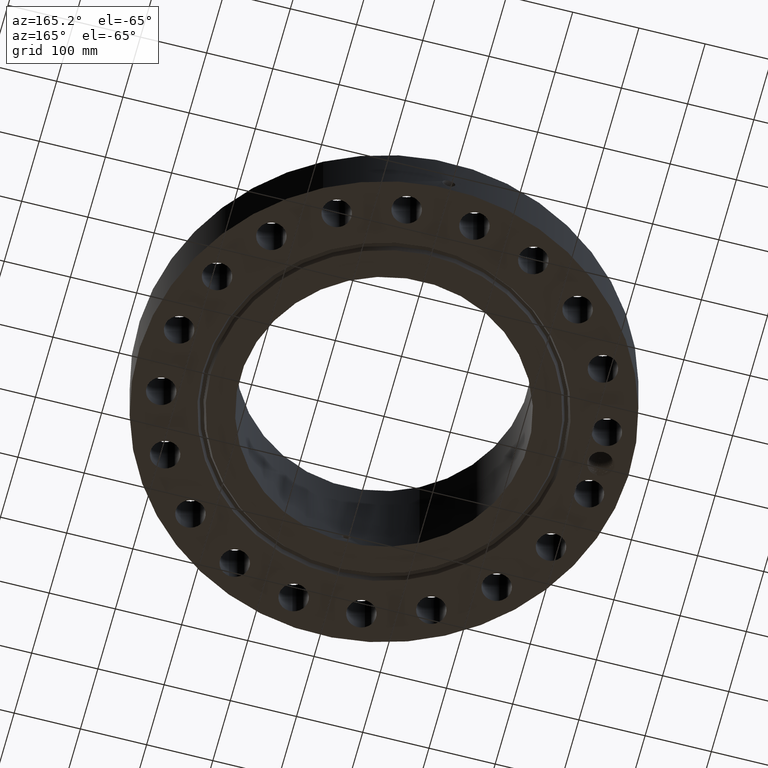
[diagram: clean part render]
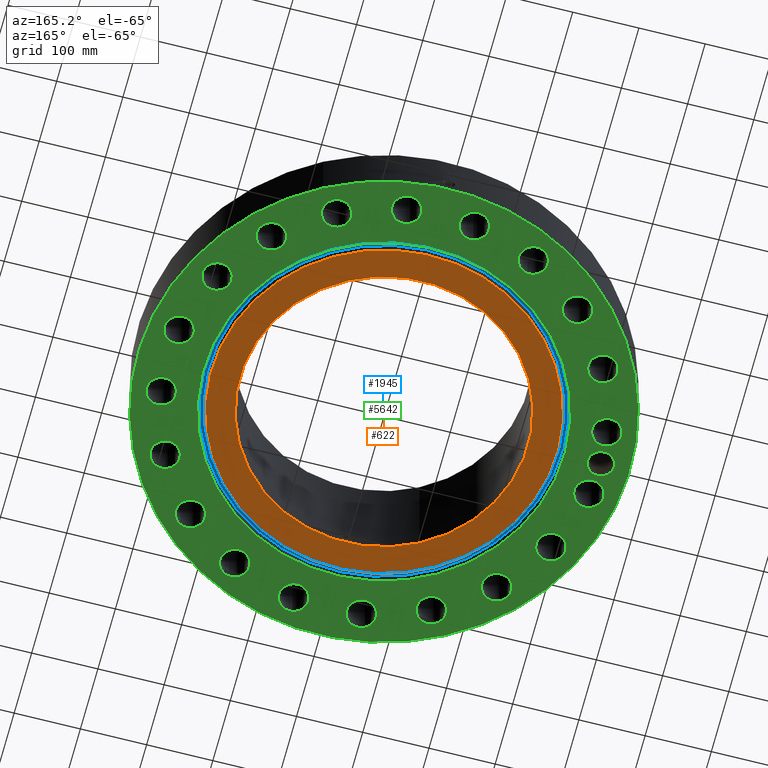
[diagram: same view with three faces highlighted in distinct colors, each labeled with its STEP entity id]
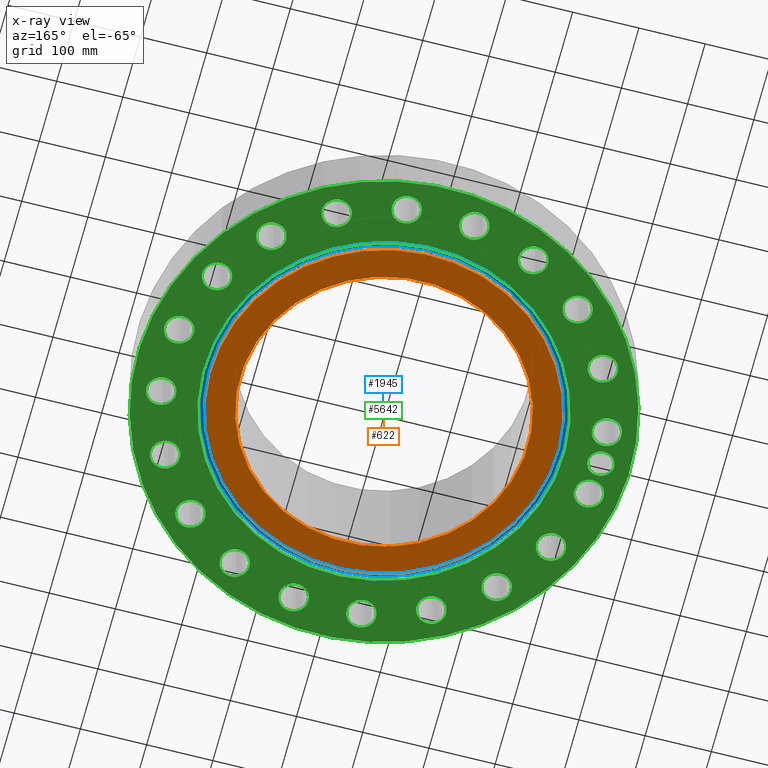
[diagram: x-ray of the same camera — body ghosted, the three highlighted faces saturated]
A machine part, auxiliary view with three faces highlighted in distinct colors.
The next image is the same camera in x-ray (body ghosted, the three faces saturated) — at least one of them is partly hidden behind the body in this view.
Their STEP definitions:

[orange] entity #622 — the highlighted planar face has unit normal (0, 0, -1).
#252=AXIS2_PLACEMENT_3D('Circle Axis2P3D',#250,#251,$) ;
#543=AXIS2_PLACEMENT_3D('Circle Axis2P3D',#541,#542,$) ;
#598=AXIS2_PLACEMENT_3D('Plane Axis2P3D',#595,#596,#597) ;
#602=AXIS2_PLACEMENT_3D('Circle Axis2P3D',#600,#601,$) ;
#611=AXIS2_PLACEMENT_3D('Circle Axis2P3D',#609,#610,$) ;
#247=CARTESIAN_POINT('Vertex',(4.10484146155,7.51386189494,-5.09129046883E-014)) ;
#250=CARTESIAN_POINT('Axis2P3D Location',(0.,0.,-5.25913520956E-014)) ;
#254=CARTESIAN_POINT('Vertex',(-4.10484146155,-7.51386189494,-5.09129046883E-014)) ;
#541=CARTESIAN_POINT('Axis2P3D Location',(0.,0.,-5.25913520956E-014)) ;
#595=CARTESIAN_POINT('Axis2P3D Location',(0.,8.56200000003,0.)) ;
#600=CARTESIAN_POINT('Axis2P3D Location',(0.,1.1189649382E-015,0.)) ;
#604=CARTESIAN_POINT('Vertex',(-4.92154286656,9.00882378912,-3.49676543189E-017)) ;
#606=CARTESIAN_POINT('Vertex',(4.92154286656,-9.00882378912,0.)) ;
#609=CARTESIAN_POINT('Axis2P3D Location',(-4.47585975282E-015,1.1189649382E-015,0.)) ;
#251=DIRECTION('Axis2P3D Direction',(0.,0.,-0.0393700787402)) ;
#542=DIRECTION('Axis2P3D Direction',(0.,0.,-0.0393700787402)) ;
#596=DIRECTION('Axis2P3D Direction',(0.,0.,-0.0393700787402)) ;
#597=DIRECTION('Axis2P3D XDirection',(0.0393700787402,0.,0.)) ;
#601=DIRECTION('Axis2P3D Direction',(0.,0.,-0.0393700787402)) ;
#610=DIRECTION('Axis2P3D Direction',(0.,0.,-0.0393700787402)) ;
#615=ORIENTED_EDGE('',*,*,#608,.T.) ;
#616=ORIENTED_EDGE('',*,*,#613,.T.) ;
#619=ORIENTED_EDGE('',*,*,#256,.F.) ;
#620=ORIENTED_EDGE('',*,*,#545,.F.) ;
#621=FACE_BOUND('',#618,.T.) ;
#622=ADVANCED_FACE('PartBody',(#617,#621),#599,.T.) ;
#253=CIRCLE('generated circle',#252,8.56200000003) ;
#544=CIRCLE('generated circle',#543,8.56200000003) ;
#603=CIRCLE('generated circle',#602,10.2655) ;
#612=CIRCLE('generated circle',#611,10.2655) ;
#256=EDGE_CURVE('',#248,#255,#253,.T.) ;
#545=EDGE_CURVE('',#255,#248,#544,.T.) ;
#608=EDGE_CURVE('',#605,#607,#603,.T.) ;
#613=EDGE_CURVE('',#607,#605,#612,.T.) ;
#614=EDGE_LOOP('',(#615,#616)) ;
#618=EDGE_LOOP('',(#619,#620)) ;
#617=FACE_OUTER_BOUND('',#614,.T.) ;
#599=PLANE('',#598) ;
#248=VERTEX_POINT('',#247) ;
#255=VERTEX_POINT('',#254) ;
#605=VERTEX_POINT('',#604) ;
#607=VERTEX_POINT('',#606) ;

[blue] entity #1945 — the highlighted planar face has unit normal (0, 0, 1).
#1425=AXIS2_PLACEMENT_3D('Circle Axis2P3D',#1423,#1424,$) ;
#1451=AXIS2_PLACEMENT_3D('Circle Axis2P3D',#1449,#1450,$) ;
#1921=AXIS2_PLACEMENT_3D('Plane Axis2P3D',#1918,#1919,#1920) ;
#1925=AXIS2_PLACEMENT_3D('Circle Axis2P3D',#1923,#1924,$) ;
#1934=AXIS2_PLACEMENT_3D('Circle Axis2P3D',#1932,#1933,$) ;
#1423=CARTESIAN_POINT('Axis2P3D Location',(0.,0.,0.312000000001)) ;
#1427=CARTESIAN_POINT('Vertex',(4.99455588084,-9.14247321528,0.312000000001)) ;
#1429=CARTESIAN_POINT('Vertex',(-4.99455588084,9.14247321528,0.312000000001)) ;
#1449=CARTESIAN_POINT('Axis2P3D Location',(0.,0.,0.312000000001)) ;
#1918=CARTESIAN_POINT('Axis2P3D Location',(0.,10.4177927095,0.312000000001)) ;
#1923=CARTESIAN_POINT('Axis2P3D Location',(0.,0.,0.312000000001)) ;
#1927=CARTESIAN_POINT('Vertex',(-5.07338042989,9.2867605845,0.312000000001)) ;
#1929=CARTESIAN_POINT('Vertex',(5.07338042989,-9.2867605845,0.312000000001)) ;
#1932=CARTESIAN_POINT('Axis2P3D Location',(0.,0.,0.312000000001)) ;
#1424=DIRECTION('Axis2P3D Direction',(0.,0.,0.0393700787402)) ;
#1450=DIRECTION('Axis2P3D Direction',(0.,0.,0.0393700787402)) ;
#1919=DIRECTION('Axis2P3D Direction',(0.,0.,0.0393700787402)) ;
#1920=DIRECTION('Axis2P3D XDirection',(0.0393700787402,0.,0.)) ;
#1924=DIRECTION('Axis2P3D Direction',(0.,0.,0.0393700787402)) ;
#1933=DIRECTION('Axis2P3D Direction',(0.,0.,0.0393700787402)) ;
#1938=ORIENTED_EDGE('',*,*,#1931,.F.) ;
#1939=ORIENTED_EDGE('',*,*,#1936,.F.) ;
#1942=ORIENTED_EDGE('',*,*,#1431,.T.) ;
#1943=ORIENTED_EDGE('',*,*,#1453,.T.) ;
#1944=FACE_BOUND('',#1941,.T.) ;
#1945=ADVANCED_FACE('PartBody',(#1940,#1944),#1922,.F.) ;
#1426=CIRCLE('generated circle',#1425,10.4177927095) ;
#1452=CIRCLE('generated circle',#1451,10.4177927095) ;
#1926=CIRCLE('generated circle',#1925,10.5822072905) ;
#1935=CIRCLE('generated circle',#1934,10.5822072905) ;
#1431=EDGE_CURVE('',#1428,#1430,#1426,.T.) ;
#1453=EDGE_CURVE('',#1430,#1428,#1452,.T.) ;
#1931=EDGE_CURVE('',#1928,#1930,#1926,.T.) ;
#1936=EDGE_CURVE('',#1930,#1928,#1935,.T.) ;
#1937=EDGE_LOOP('',(#1938,#1939)) ;
#1941=EDGE_LOOP('',(#1942,#1943)) ;
#1940=FACE_OUTER_BOUND('',#1937,.T.) ;
#1922=PLANE('',#1921) ;
#1428=VERTEX_POINT('',#1427) ;
#1430=VERTEX_POINT('',#1429) ;
#1928=VERTEX_POINT('',#1927) ;
#1930=VERTEX_POINT('',#1929) ;

[green] entity #5642 — the highlighted planar face has unit normal (0, 0, -1).
#598=AXIS2_PLACEMENT_3D('Plane Axis2P3D',#595,#596,#597) ;
#3696=AXIS2_PLACEMENT_3D('Circle Axis2P3D',#3694,#3695,$) ;
#3722=AXIS2_PLACEMENT_3D('Circle Axis2P3D',#3720,#3721,$) ;
#3995=AXIS2_PLACEMENT_3D('Circle Axis2P3D',#3993,#3994,$) ;
#4108=AXIS2_PLACEMENT_3D('Circle Axis2P3D',#4106,#4107,$) ;
#4344=AXIS2_PLACEMENT_3D('Circle Axis2P3D',#4342,#4343,$) ;
#4363=AXIS2_PLACEMENT_3D('Circle Axis2P3D',#4361,#4362,$) ;
#4387=AXIS2_PLACEMENT_3D('Circle Axis2P3D',#4385,#4386,$) ;
#4406=AXIS2_PLACEMENT_3D('Circle Axis2P3D',#4404,#4405,$) ;
#4430=AXIS2_PLACEMENT_3D('Circle Axis2P3D',#4428,#4429,$) ;
#4449=AXIS2_PLACEMENT_3D('Circle Axis2P3D',#4447,#4448,$) ;
#4473=AXIS2_PLACEMENT_3D('Circle Axis2P3D',#4471,#4472,$) ;
#4492=AXIS2_PLACEMENT_3D('Circle Axis2P3D',#4490,#4491,$) ;
#4516=AXIS2_PLACEMENT_3D('Circle Axis2P3D',#4514,#4515,$) ;
#4535=AXIS2_PLACEMENT_3D('Circle Axis2P3D',#4533,#4534,$) ;
#4559=AXIS2_PLACEMENT_3D('Circle Axis2P3D',#4557,#4558,$) ;
#4578=AXIS2_PLACEMENT_3D('Circle Axis2P3D',#4576,#4577,$) ;
#4602=AXIS2_PLACEMENT_3D('Circle Axis2P3D',#4600,#4601,$) ;
#4621=AXIS2_PLACEMENT_3D('Circle Axis2P3D',#4619,#4620,$) ;
#4645=AXIS2_PLACEMENT_3D('Circle Axis2P3D',#4643,#4644,$) ;
#4664=AXIS2_PLACEMENT_3D('Circle Axis2P3D',#4662,#4663,$) ;
#4688=AXIS2_PLACEMENT_3D('Circle Axis2P3D',#4686,#4687,$) ;
#4707=AXIS2_PLACEMENT_3D('Circle Axis2P3D',#4705,#4706,$) ;
#4731=AXIS2_PLACEMENT_3D('Circle Axis2P3D',#4729,#4730,$) ;
#4750=AXIS2_PLACEMENT_3D('Circle Axis2P3D',#4748,#4749,$) ;
#4774=AXIS2_PLACEMENT_3D('Circle Axis2P3D',#4772,#4773,$) ;
#4793=AXIS2_PLACEMENT_3D('Circle Axis2P3D',#4791,#4792,$) ;
#4817=AXIS2_PLACEMENT_3D('Circle Axis2P3D',#4815,#4816,$) ;
#4836=AXIS2_PLACEMENT_3D('Circle Axis2P3D',#4834,#4835,$) ;
#4860=AXIS2_PLACEMENT_3D('Circle Axis2P3D',#4858,#4859,$) ;
#4879=AXIS2_PLACEMENT_3D('Circle Axis2P3D',#4877,#4878,$) ;
#4903=AXIS2_PLACEMENT_3D('Circle Axis2P3D',#4901,#4902,$) ;
#4922=AXIS2_PLACEMENT_3D('Circle Axis2P3D',#4920,#4921,$) ;
#4946=AXIS2_PLACEMENT_3D('Circle Axis2P3D',#4944,#4945,$) ;
#4965=AXIS2_PLACEMENT_3D('Circle Axis2P3D',#4963,#4964,$) ;
#4989=AXIS2_PLACEMENT_3D('Circle Axis2P3D',#4987,#4988,$) ;
#5008=AXIS2_PLACEMENT_3D('Circle Axis2P3D',#5006,#5007,$) ;
#5032=AXIS2_PLACEMENT_3D('Circle Axis2P3D',#5030,#5031,$) ;
#5051=AXIS2_PLACEMENT_3D('Circle Axis2P3D',#5049,#5050,$) ;
#5075=AXIS2_PLACEMENT_3D('Circle Axis2P3D',#5073,#5074,$) ;
#5094=AXIS2_PLACEMENT_3D('Circle Axis2P3D',#5092,#5093,$) ;
#5118=AXIS2_PLACEMENT_3D('Circle Axis2P3D',#5116,#5117,$) ;
#5137=AXIS2_PLACEMENT_3D('Circle Axis2P3D',#5135,#5136,$) ;
#5161=AXIS2_PLACEMENT_3D('Circle Axis2P3D',#5159,#5160,$) ;
#5180=AXIS2_PLACEMENT_3D('Circle Axis2P3D',#5178,#5179,$) ;
#5541=AXIS2_PLACEMENT_3D('Circle Axis2P3D',#5539,#5540,$) ;
#5548=AXIS2_PLACEMENT_3D('Circle Axis2P3D',#5546,#5547,$) ;
#595=CARTESIAN_POINT('Axis2P3D Location',(0.,8.56200000003,0.)) ;
#3694=CARTESIAN_POINT('Axis2P3D Location',(0.,0.,0.)) ;
#3698=CARTESIAN_POINT('Vertex',(-5.14639344417,9.42041001065,0.)) ;
#3700=CARTESIAN_POINT('Vertex',(5.14639344417,-9.42041001065,-1.60851209867E-015)) ;
#3720=CARTESIAN_POINT('Axis2P3D Location',(0.,0.,0.)) ;
#3993=CARTESIAN_POINT('Axis2P3D Location',(0.,0.,1.67844740731E-015)) ;
#3997=CARTESIAN_POINT('Vertex',(-7.01159850211,-12.8346449677,2.23792987641E-015)) ;
#3999=CARTESIAN_POINT('Vertex',(7.01159850211,12.8346449677,2.23792987641E-015)) ;
#4106=CARTESIAN_POINT('Axis2P3D Location',(0.,0.,1.67844740731E-015)) ;
#4339=CARTESIAN_POINT('Vertex',(13.4843721269,-2.43359108368,0.)) ;
#4342=CARTESIAN_POINT('Axis2P3D Location',(12.7164873852,-2.0140937374,0.)) ;
#4346=CARTESIAN_POINT('Vertex',(11.9486026436,-1.59459639112,0.)) ;
#4361=CARTESIAN_POINT('Axis2P3D Location',(12.7164873852,-2.0140937374,0.)) ;
#4382=CARTESIAN_POINT('Vertex',(10.8710390208,-5.20887256453,0.)) ;
#4385=CARTESIAN_POINT('Axis2P3D Location',(11.471708999,-5.84512768417,0.)) ;
#4389=CARTESIAN_POINT('Vertex',(12.0723789772,-6.48138280381,0.)) ;
#4404=CARTESIAN_POINT('Axis2P3D Location',(11.471708999,-5.84512768417,0.)) ;
#4425=CARTESIAN_POINT('Vertex',(8.72934235561,-8.31326799897,0.)) ;
#4428=CARTESIAN_POINT('Axis2P3D Location',(9.10399980781,-9.10399980781,-3.35689481461E-015)) ;
#4432=CARTESIAN_POINT('Vertex',(9.47865726002,-9.89473161666,-3.35689481461E-015)) ;
#4447=CARTESIAN_POINT('Axis2P3D Location',(9.10399980781,-9.10399980781,-3.35689481461E-015)) ;
#4468=CARTESIAN_POINT('Vertex',(5.7331568398,-10.6039028397,0.)) ;
#4471=CARTESIAN_POINT('Axis2P3D Location',(5.84512768417,-11.471708999,0.)) ;
#4475=CARTESIAN_POINT('Vertex',(5.95709852854,-12.3395151582,0.)) ;
#4490=CARTESIAN_POINT('Axis2P3D Location',(5.84512768417,-11.471708999,0.)) ;
#4511=CARTESIAN_POINT('Vertex',(2.17576998726,-11.8565537888,0.)) ;
#4514=CARTESIAN_POINT('Axis2P3D Location',(2.0140937374,-12.7164873852,0.)) ;
#4518=CARTESIAN_POINT('Vertex',(1.85241748755,-13.5764209816,0.)) ;
#4533=CARTESIAN_POINT('Axis2P3D Location',(2.0140937374,-12.7164873852,0.)) ;
#4554=CARTESIAN_POINT('Vertex',(-1.59459639112,-11.9486026436,0.)) ;
#4557=CARTESIAN_POINT('Axis2P3D Location',(-2.0140937374,-12.7164873852,0.)) ;
#4561=CARTESIAN_POINT('Vertex',(-2.43359108368,-13.4843721269,0.)) ;
#4576=CARTESIAN_POINT('Axis2P3D Location',(-2.0140937374,-12.7164873852,0.)) ;
#4597=CARTESIAN_POINT('Vertex',(-5.20887256453,-10.8710390208,0.)) ;
#4600=CARTESIAN_POINT('Axis2P3D Location',(-5.84512768417,-11.471708999,0.)) ;
#4604=CARTESIAN_POINT('Vertex',(-6.48138280381,-12.0723789772,0.)) ;
#4619=CARTESIAN_POINT('Axis2P3D Location',(-5.84512768417,-11.471708999,0.)) ;
#4640=CARTESIAN_POINT('Vertex',(-8.31326799897,-8.72934235561,0.)) ;
#4643=CARTESIAN_POINT('Axis2P3D Location',(-9.10399980781,-9.10399980781,0.)) ;
#4647=CARTESIAN_POINT('Vertex',(-9.89473161666,-9.47865726002,0.)) ;
#4662=CARTESIAN_POINT('Axis2P3D Location',(-9.10399980781,-9.10399980781,0.)) ;
#4683=CARTESIAN_POINT('Vertex',(-10.6039028397,-5.7331568398,0.)) ;
#4686=CARTESIAN_POINT('Axis2P3D Location',(-11.471708999,-5.84512768417,0.)) ;
#4690=CARTESIAN_POINT('Vertex',(-12.3395151582,-5.95709852854,0.)) ;
#4705=CARTESIAN_POINT('Axis2P3D Location',(-11.471708999,-5.84512768417,0.)) ;
#4726=CARTESIAN_POINT('Vertex',(-11.8565537888,-2.17576998726,0.)) ;
#4729=CARTESIAN_POINT('Axis2P3D Location',(-12.7164873852,-2.0140937374,0.)) ;
#4733=CARTESIAN_POINT('Vertex',(-13.5764209816,-1.85241748755,0.)) ;
#4748=CARTESIAN_POINT('Axis2P3D Location',(-12.7164873852,-2.0140937374,0.)) ;
#4769=CARTESIAN_POINT('Vertex',(-11.9486026436,1.59459639112,0.)) ;
#4772=CARTESIAN_POINT('Axis2P3D Location',(-12.7164873852,2.0140937374,0.)) ;
#4776=CARTESIAN_POINT('Vertex',(-13.4843721269,2.43359108368,0.)) ;
#4791=CARTESIAN_POINT('Axis2P3D Location',(-12.7164873852,2.0140937374,0.)) ;
#4812=CARTESIAN_POINT('Vertex',(-10.8710390208,5.20887256453,0.)) ;
#4815=CARTESIAN_POINT('Axis2P3D Location',(-11.471708999,5.84512768417,0.)) ;
#4819=CARTESIAN_POINT('Vertex',(-12.0723789772,6.48138280381,0.)) ;
#4834=CARTESIAN_POINT('Axis2P3D Location',(-11.471708999,5.84512768417,0.)) ;
#4855=CARTESIAN_POINT('Vertex',(-8.72934235561,8.31326799897,0.)) ;
#4858=CARTESIAN_POINT('Axis2P3D Location',(-9.10399980781,9.10399980781,-3.35689481461E-015)) ;
#4862=CARTESIAN_POINT('Vertex',(-9.47865726002,9.89473161666,-3.35689481461E-015)) ;
#4877=CARTESIAN_POINT('Axis2P3D Location',(-9.10399980781,9.10399980781,-3.35689481461E-015)) ;
#4898=CARTESIAN_POINT('Vertex',(-5.7331568398,10.6039028397,0.)) ;
#4901=CARTESIAN_POINT('Axis2P3D Location',(-5.84512768417,11.471708999,0.)) ;
#4905=CARTESIAN_POINT('Vertex',(-5.95709852854,12.3395151582,0.)) ;
#4920=CARTESIAN_POINT('Axis2P3D Location',(-5.84512768417,11.471708999,0.)) ;
#4941=CARTESIAN_POINT('Vertex',(-2.17576998726,11.8565537888,0.)) ;
#4944=CARTESIAN_POINT('Axis2P3D Location',(-2.0140937374,12.7164873852,-3.35689481461E-015)) ;
#4948=CARTESIAN_POINT('Vertex',(-1.85241748755,13.5764209816,-3.35689481461E-015)) ;
#4963=CARTESIAN_POINT('Axis2P3D Location',(-2.0140937374,12.7164873852,-3.35689481461E-015)) ;
#4984=CARTESIAN_POINT('Vertex',(1.59459639112,11.9486026436,0.)) ;
#4987=CARTESIAN_POINT('Axis2P3D Location',(2.0140937374,12.7164873852,0.)) ;
#4991=CARTESIAN_POINT('Vertex',(2.43359108368,13.4843721269,0.)) ;
#5006=CARTESIAN_POINT('Axis2P3D Location',(2.0140937374,12.7164873852,0.)) ;
#5027=CARTESIAN_POINT('Vertex',(5.20887256453,10.8710390208,0.)) ;
#5030=CARTESIAN_POINT('Axis2P3D Location',(5.84512768417,11.471708999,-3.35689481461E-015)) ;
#5034=CARTESIAN_POINT('Vertex',(6.48138280381,12.0723789772,-3.35689481461E-015)) ;
#5049=CARTESIAN_POINT('Axis2P3D Location',(5.84512768417,11.471708999,-3.35689481461E-015)) ;
#5070=CARTESIAN_POINT('Vertex',(8.31326799897,8.72934235561,0.)) ;
#5073=CARTESIAN_POINT('Axis2P3D Location',(9.10399980781,9.10399980781,0.)) ;
#5077=CARTESIAN_POINT('Vertex',(9.89473161666,9.47865726002,0.)) ;
#5092=CARTESIAN_POINT('Axis2P3D Location',(9.10399980781,9.10399980781,0.)) ;
#5113=CARTESIAN_POINT('Vertex',(10.6039028397,5.7331568398,0.)) ;
#5116=CARTESIAN_POINT('Axis2P3D Location',(11.471708999,5.84512768417,0.)) ;
#5120=CARTESIAN_POINT('Vertex',(12.3395151582,5.95709852854,0.)) ;
#5135=CARTESIAN_POINT('Axis2P3D Location',(11.471708999,5.84512768417,0.)) ;
#5156=CARTESIAN_POINT('Vertex',(11.8565537888,2.17576998726,0.)) ;
#5159=CARTESIAN_POINT('Axis2P3D Location',(12.7164873852,2.0140937374,-3.35689481461E-015)) ;
#5163=CARTESIAN_POINT('Vertex',(13.5764209816,1.85241748755,-3.35689481461E-015)) ;
#5178=CARTESIAN_POINT('Axis2P3D Location',(12.7164873852,2.0140937374,-3.35689481461E-015)) ;
#5490=CARTESIAN_POINT('Control Point',(-13.6866242781,1.3547407486E-005,0.)) ;
#5491=CARTESIAN_POINT('Control Point',(-13.6836180666,0.0700570292221,0.)) ;
#5492=CARTESIAN_POINT('Control Point',(-13.6730485164,0.139624588335,0.)) ;
#5493=CARTESIAN_POINT('Control Point',(-13.654989964,0.207595683139,0.)) ;
#5494=CARTESIAN_POINT('Control Point',(-13.6045073422,0.338230965276,0.)) ;
#5495=CARTESIAN_POINT('Control Point',(-13.5274489773,0.454294495113,0.)) ;
#5496=CARTESIAN_POINT('Control Point',(-13.4827857727,0.507743532628,0.)) ;
#5497=CARTESIAN_POINT('Control Point',(-13.3827049571,0.603758555827,0.)) ;
#5498=CARTESIAN_POINT('Control Point',(-13.2647084594,0.675356409612,0.)) ;
#5499=CARTESIAN_POINT('Control Point',(-13.2021023626,0.704405495954,0.)) ;
#5500=CARTESIAN_POINT('Control Point',(-13.1298904175,0.728589801911,0.)) ;
#5501=CARTESIAN_POINT('Control Point',(-13.0558913411,0.743623662759,0.)) ;
#5502=CARTESIAN_POINT('Control Point',(-13.0486445036,0.745005102167,0.)) ;
#5503=CARTESIAN_POINT('Control Point',(-13.0413833957,0.746298625475,0.)) ;
#5504=CARTESIAN_POINT('Control Point',(-13.0341094268,0.747504015253,0.)) ;
#5505=CARTESIAN_POINT('Vertex',(-13.6866242781,1.35474074859E-005,-4.37095678986E-018)) ;
#5507=CARTESIAN_POINT('Vertex',(-13.0341094268,0.747504015253,0.)) ;
#5511=CARTESIAN_POINT('Control Point',(-13.6872434057,-0.0204182056818,0.)) ;
#5512=CARTESIAN_POINT('Control Point',(-13.6871710386,-0.0163295524325,0.)) ;
#5513=CARTESIAN_POINT('Control Point',(-13.6870729349,-0.0122418608573,0.)) ;
#5514=CARTESIAN_POINT('Control Point',(-13.6869490924,-0.00815506088614,0.)) ;
#5515=CARTESIAN_POINT('Control Point',(-13.6867995386,-0.00406994809314,0.)) ;
#5516=CARTESIAN_POINT('Control Point',(-13.6866242781,1.3547407486E-005,0.)) ;
#5517=CARTESIAN_POINT('Vertex',(-13.6872434057,-0.0204182056816,-8.74191357973E-018)) ;
#5521=CARTESIAN_POINT('Control Point',(-13.6872434057,-0.0204182056816,0.)) ;
#5522=CARTESIAN_POINT('Control Point',(-13.6824808799,-0.090385987566,0.)) ;
#5523=CARTESIAN_POINT('Control Point',(-13.6701730356,-0.159687238602,0.)) ;
#5524=CARTESIAN_POINT('Control Point',(-13.6504126473,-0.227226833751,0.)) ;
#5525=CARTESIAN_POINT('Control Point',(-13.5966708921,-0.356620931831,0.)) ;
#5526=CARTESIAN_POINT('Control Point',(-13.5166775766,-0.470868798593,0.)) ;
#5527=CARTESIAN_POINT('Control Point',(-13.4706673303,-0.523252883198,0.)) ;
#5528=CARTESIAN_POINT('Control Point',(-13.3852463008,-0.601246634555,0.)) ;
#5529=CARTESIAN_POINT('Control Point',(-13.2877612329,-0.661980948594,0.)) ;
#5530=CARTESIAN_POINT('Control Point',(-13.2471188375,-0.683317940292,0.)) ;
#5531=CARTESIAN_POINT('Control Point',(-13.1736973363,-0.715194961295,0.)) ;
#5532=CARTESIAN_POINT('Control Point',(-13.0970930796,-0.737278431439,0.)) ;
#5533=CARTESIAN_POINT('Control Point',(-13.063861906,-0.744891584599,0.)) ;
#5534=CARTESIAN_POINT('Control Point',(-13.0303265213,-0.750639327949,0.)) ;
#5535=CARTESIAN_POINT('Control Point',(-12.9966251311,-0.754510033071,0.)) ;
#5536=CARTESIAN_POINT('Vertex',(-12.9966251311,-0.754510033071,0.)) ;
#5539=CARTESIAN_POINT('Axis2P3D Location',(-12.8750000001,-6.71378962923E-015,0.)) ;
#5543=CARTESIAN_POINT('Vertex',(-12.2043075271,-0.36640096788,0.)) ;
#5546=CARTESIAN_POINT('Axis2P3D Location',(-12.8750000001,-6.71378962923E-015,0.)) ;
#596=DIRECTION('Axis2P3D Direction',(0.,0.,-0.0393700787402)) ;
#597=DIRECTION('Axis2P3D XDirection',(0.0393700787402,0.,0.)) ;
#3695=DIRECTION('Axis2P3D Direction',(0.,0.,-0.0393700787402)) ;
#3721=DIRECTION('Axis2P3D Direction',(0.,0.,-0.0393700787402)) ;
#3994=DIRECTION('Axis2P3D Direction',(0.,0.,-0.0393700787402)) ;
#4107=DIRECTION('Axis2P3D Direction',(0.,0.,-0.0393700787402)) ;
#4343=DIRECTION('Axis2P3D Direction',(0.,-0.,-0.0393700787402)) ;
#4362=DIRECTION('Axis2P3D Direction',(0.,-0.,-0.0393700787402)) ;
#4386=DIRECTION('Axis2P3D Direction',(0.,-0.,-0.0393700787402)) ;
#4405=DIRECTION('Axis2P3D Direction',(0.,-0.,-0.0393700787402)) ;
#4429=DIRECTION('Axis2P3D Direction',(0.,-0.,-0.0393700787402)) ;
#4448=DIRECTION('Axis2P3D Direction',(0.,-0.,-0.0393700787402)) ;
#4472=DIRECTION('Axis2P3D Direction',(0.,-0.,-0.0393700787402)) ;
#4491=DIRECTION('Axis2P3D Direction',(0.,-0.,-0.0393700787402)) ;
#4515=DIRECTION('Axis2P3D Direction',(0.,-0.,-0.0393700787402)) ;
#4534=DIRECTION('Axis2P3D Direction',(0.,-0.,-0.0393700787402)) ;
#4558=DIRECTION('Axis2P3D Direction',(0.,-0.,-0.0393700787402)) ;
#4577=DIRECTION('Axis2P3D Direction',(0.,-0.,-0.0393700787402)) ;
#4601=DIRECTION('Axis2P3D Direction',(-0.,0.,-0.0393700787402)) ;
#4620=DIRECTION('Axis2P3D Direction',(-0.,0.,-0.0393700787402)) ;
#4644=DIRECTION('Axis2P3D Direction',(-0.,0.,-0.0393700787402)) ;
#4663=DIRECTION('Axis2P3D Direction',(-0.,0.,-0.0393700787402)) ;
#4687=DIRECTION('Axis2P3D Direction',(-0.,0.,-0.0393700787402)) ;
#4706=DIRECTION('Axis2P3D Direction',(-0.,0.,-0.0393700787402)) ;
#4730=DIRECTION('Axis2P3D Direction',(-0.,0.,-0.0393700787402)) ;
#4749=DIRECTION('Axis2P3D Direction',(-0.,0.,-0.0393700787402)) ;
#4773=DIRECTION('Axis2P3D Direction',(-0.,0.,-0.0393700787402)) ;
#4792=DIRECTION('Axis2P3D Direction',(-0.,0.,-0.0393700787402)) ;
#4816=DIRECTION('Axis2P3D Direction',(0.,0.,-0.0393700787402)) ;
#4835=DIRECTION('Axis2P3D Direction',(0.,0.,-0.0393700787402)) ;
#4859=DIRECTION('Axis2P3D Direction',(0.,0.,-0.0393700787402)) ;
#4878=DIRECTION('Axis2P3D Direction',(0.,0.,-0.0393700787402)) ;
#4902=DIRECTION('Axis2P3D Direction',(0.,0.,-0.0393700787402)) ;
#4921=DIRECTION('Axis2P3D Direction',(0.,0.,-0.0393700787402)) ;
#4945=DIRECTION('Axis2P3D Direction',(0.,0.,-0.0393700787402)) ;
#4964=DIRECTION('Axis2P3D Direction',(0.,0.,-0.0393700787402)) ;
#4988=DIRECTION('Axis2P3D Direction',(0.,0.,-0.0393700787402)) ;
#5007=DIRECTION('Axis2P3D Direction',(0.,0.,-0.0393700787402)) ;
#5031=DIRECTION('Axis2P3D Direction',(0.,0.,-0.0393700787402)) ;
#5050=DIRECTION('Axis2P3D Direction',(0.,0.,-0.0393700787402)) ;
#5074=DIRECTION('Axis2P3D Direction',(0.,0.,-0.0393700787402)) ;
#5093=DIRECTION('Axis2P3D Direction',(0.,0.,-0.0393700787402)) ;
#5117=DIRECTION('Axis2P3D Direction',(0.,0.,-0.0393700787402)) ;
#5136=DIRECTION('Axis2P3D Direction',(0.,0.,-0.0393700787402)) ;
#5160=DIRECTION('Axis2P3D Direction',(0.,0.,-0.0393700787402)) ;
#5179=DIRECTION('Axis2P3D Direction',(0.,0.,-0.0393700787402)) ;
#5540=DIRECTION('Axis2P3D Direction',(0.,0.,-0.0393700787402)) ;
#5547=DIRECTION('Axis2P3D Direction',(0.,0.,-0.0393700787402)) ;
#5486=ORIENTED_EDGE('',*,*,#4001,.T.) ;
#5487=ORIENTED_EDGE('',*,*,#4110,.T.) ;
#5552=ORIENTED_EDGE('',*,*,#5509,.F.) ;
#5553=ORIENTED_EDGE('',*,*,#5519,.F.) ;
#5554=ORIENTED_EDGE('',*,*,#5538,.T.) ;
#5555=ORIENTED_EDGE('',*,*,#5545,.F.) ;
#5556=ORIENTED_EDGE('',*,*,#5550,.F.) ;
#5559=ORIENTED_EDGE('',*,*,#4348,.F.) ;
#5560=ORIENTED_EDGE('',*,*,#4365,.F.) ;
#5563=ORIENTED_EDGE('',*,*,#4391,.F.) ;
#5564=ORIENTED_EDGE('',*,*,#4408,.F.) ;
#5567=ORIENTED_EDGE('',*,*,#4434,.F.) ;
#5568=ORIENTED_EDGE('',*,*,#4451,.F.) ;
#5571=ORIENTED_EDGE('',*,*,#4477,.F.) ;
#5572=ORIENTED_EDGE('',*,*,#4494,.F.) ;
#5575=ORIENTED_EDGE('',*,*,#4520,.F.) ;
#5576=ORIENTED_EDGE('',*,*,#4537,.F.) ;
#5579=ORIENTED_EDGE('',*,*,#4563,.F.) ;
#5580=ORIENTED_EDGE('',*,*,#4580,.F.) ;
#5583=ORIENTED_EDGE('',*,*,#4606,.F.) ;
#5584=ORIENTED_EDGE('',*,*,#4623,.F.) ;
#5587=ORIENTED_EDGE('',*,*,#4649,.F.) ;
#5588=ORIENTED_EDGE('',*,*,#4666,.F.) ;
#5591=ORIENTED_EDGE('',*,*,#4692,.F.) ;
#5592=ORIENTED_EDGE('',*,*,#4709,.F.) ;
#5595=ORIENTED_EDGE('',*,*,#4735,.F.) ;
#5596=ORIENTED_EDGE('',*,*,#4752,.F.) ;
#5599=ORIENTED_EDGE('',*,*,#4778,.F.) ;
#5600=ORIENTED_EDGE('',*,*,#4795,.F.) ;
#5603=ORIENTED_EDGE('',*,*,#4821,.F.) ;
#5604=ORIENTED_EDGE('',*,*,#4838,.F.) ;
#5607=ORIENTED_EDGE('',*,*,#4864,.F.) ;
#5608=ORIENTED_EDGE('',*,*,#4881,.F.) ;
#5611=ORIENTED_EDGE('',*,*,#4907,.F.) ;
#5612=ORIENTED_EDGE('',*,*,#4924,.F.) ;
#5615=ORIENTED_EDGE('',*,*,#4950,.F.) ;
#5616=ORIENTED_EDGE('',*,*,#4967,.F.) ;
#5619=ORIENTED_EDGE('',*,*,#4993,.F.) ;
#5620=ORIENTED_EDGE('',*,*,#5010,.F.) ;
#5623=ORIENTED_EDGE('',*,*,#5036,.F.) ;
#5624=ORIENTED_EDGE('',*,*,#5053,.F.) ;
#5627=ORIENTED_EDGE('',*,*,#5079,.F.) ;
#5628=ORIENTED_EDGE('',*,*,#5096,.F.) ;
#5631=ORIENTED_EDGE('',*,*,#5122,.F.) ;
#5632=ORIENTED_EDGE('',*,*,#5139,.F.) ;
#5635=ORIENTED_EDGE('',*,*,#5165,.F.) ;
#5636=ORIENTED_EDGE('',*,*,#5182,.F.) ;
#5639=ORIENTED_EDGE('',*,*,#3724,.F.) ;
#5640=ORIENTED_EDGE('',*,*,#3702,.F.) ;
#5557=FACE_BOUND('',#5551,.T.) ;
#5561=FACE_BOUND('',#5558,.T.) ;
#5565=FACE_BOUND('',#5562,.T.) ;
#5569=FACE_BOUND('',#5566,.T.) ;
#5573=FACE_BOUND('',#5570,.T.) ;
#5577=FACE_BOUND('',#5574,.T.) ;
#5581=FACE_BOUND('',#5578,.T.) ;
#5585=FACE_BOUND('',#5582,.T.) ;
#5589=FACE_BOUND('',#5586,.T.) ;
#5593=FACE_BOUND('',#5590,.T.) ;
#5597=FACE_BOUND('',#5594,.T.) ;
#5601=FACE_BOUND('',#5598,.T.) ;
#5605=FACE_BOUND('',#5602,.T.) ;
#5609=FACE_BOUND('',#5606,.T.) ;
#5613=FACE_BOUND('',#5610,.T.) ;
#5617=FACE_BOUND('',#5614,.T.) ;
#5621=FACE_BOUND('',#5618,.T.) ;
#5625=FACE_BOUND('',#5622,.T.) ;
#5629=FACE_BOUND('',#5626,.T.) ;
#5633=FACE_BOUND('',#5630,.T.) ;
#5637=FACE_BOUND('',#5634,.T.) ;
#5641=FACE_BOUND('',#5638,.T.) ;
#5642=ADVANCED_FACE('PartBody',(#5488,#5557,#5561,#5565,#5569,#5573,#5577,#5581,#5585,#5589,#5593,#5597,#5601,#5605,#5609,#5613,#5617,#5621,#5625,#5629,#5633,#5637,#5641),#599,.T.) ;
#5489=B_SPLINE_CURVE_WITH_KNOTS('',5,(#5490,#5491,#5492,#5493,#5494,#5495,#5496,#5497,#5498,#5499,#5500,#5501,#5502,#5503,#5504),.UNSPECIFIED.,.F.,.U.,(6,3,3,3,6),(0.,12.1975387415,24.4050867921,36.6184649999,37.9412104506),.UNSPECIFIED.) ;
#5510=B_SPLINE_CURVE_WITH_KNOTS('',5,(#5511,#5512,#5513,#5514,#5515,#5516),.UNSPECIFIED.,.F.,.U.,(6,6),(0.,0.711109631891),.UNSPECIFIED.) ;
#5520=B_SPLINE_CURVE_WITH_KNOTS('',5,(#5521,#5522,#5523,#5524,#5525,#5526,#5527,#5528,#5529,#5530,#5531,#5532,#5533,#5534,#5535),.UNSPECIFIED.,.F.,.U.,(6,3,3,3,6),(0.,12.1952338708,24.3885855284,32.5133933373,38.5908865322),.UNSPECIFIED.) ;
#3697=CIRCLE('generated circle',#3696,10.7345) ;
#3723=CIRCLE('generated circle',#3722,10.7345) ;
#3996=CIRCLE('generated circle',#3995,14.6250000001) ;
#4109=CIRCLE('generated circle',#4108,14.6250000001) ;
#4345=CIRCLE('generated circle',#4344,0.875000000004) ;
#4364=CIRCLE('generated circle',#4363,0.875000000004) ;
#4388=CIRCLE('generated circle',#4387,0.875000000004) ;
#4407=CIRCLE('generated circle',#4406,0.875000000004) ;
#4431=CIRCLE('generated circle',#4430,0.875000000004) ;
#4450=CIRCLE('generated circle',#4449,0.875000000004) ;
#4474=CIRCLE('generated circle',#4473,0.875000000004) ;
#4493=CIRCLE('generated circle',#4492,0.875000000004) ;
#4517=CIRCLE('generated circle',#4516,0.875000000004) ;
#4536=CIRCLE('generated circle',#4535,0.875000000004) ;
#4560=CIRCLE('generated circle',#4559,0.875000000004) ;
#4579=CIRCLE('generated circle',#4578,0.875000000004) ;
#4603=CIRCLE('generated circle',#4602,0.875000000004) ;
#4622=CIRCLE('generated circle',#4621,0.875000000004) ;
#4646=CIRCLE('generated circle',#4645,0.875000000003) ;
#4665=CIRCLE('generated circle',#4664,0.875000000003) ;
#4689=CIRCLE('generated circle',#4688,0.875000000004) ;
#4708=CIRCLE('generated circle',#4707,0.875000000004) ;
#4732=CIRCLE('generated circle',#4731,0.875000000004) ;
#4751=CIRCLE('generated circle',#4750,0.875000000004) ;
#4775=CIRCLE('generated circle',#4774,0.875000000004) ;
#4794=CIRCLE('generated circle',#4793,0.875000000004) ;
#4818=CIRCLE('generated circle',#4817,0.875000000004) ;
#4837=CIRCLE('generated circle',#4836,0.875000000004) ;
#4861=CIRCLE('generated circle',#4860,0.875000000004) ;
#4880=CIRCLE('generated circle',#4879,0.875000000004) ;
#4904=CIRCLE('generated circle',#4903,0.875000000003) ;
#4923=CIRCLE('generated circle',#4922,0.875000000003) ;
#4947=CIRCLE('generated circle',#4946,0.875000000004) ;
#4966=CIRCLE('generated circle',#4965,0.875000000004) ;
#4990=CIRCLE('generated circle',#4989,0.875000000004) ;
#5009=CIRCLE('generated circle',#5008,0.875000000004) ;
#5033=CIRCLE('generated circle',#5032,0.875000000004) ;
#5052=CIRCLE('generated circle',#5051,0.875000000004) ;
#5076=CIRCLE('generated circle',#5075,0.875000000004) ;
#5095=CIRCLE('generated circle',#5094,0.875000000004) ;
#5119=CIRCLE('generated circle',#5118,0.875000000003) ;
#5138=CIRCLE('generated circle',#5137,0.875000000003) ;
#5162=CIRCLE('generated circle',#5161,0.875000000004) ;
#5181=CIRCLE('generated circle',#5180,0.875000000004) ;
#5542=CIRCLE('generated circle',#5541,0.764250000003) ;
#5549=CIRCLE('generated circle',#5548,0.764250000003) ;
#3702=EDGE_CURVE('',#3699,#3701,#3697,.T.) ;
#3724=EDGE_CURVE('',#3701,#3699,#3723,.T.) ;
#4001=EDGE_CURVE('',#3998,#4000,#3996,.T.) ;
#4110=EDGE_CURVE('',#4000,#3998,#4109,.T.) ;
#4348=EDGE_CURVE('',#4340,#4347,#4345,.T.) ;
#4365=EDGE_CURVE('',#4347,#4340,#4364,.T.) ;
#4391=EDGE_CURVE('',#4383,#4390,#4388,.T.) ;
#4408=EDGE_CURVE('',#4390,#4383,#4407,.T.) ;
#4434=EDGE_CURVE('',#4426,#4433,#4431,.T.) ;
#4451=EDGE_CURVE('',#4433,#4426,#4450,.T.) ;
#4477=EDGE_CURVE('',#4469,#4476,#4474,.T.) ;
#4494=EDGE_CURVE('',#4476,#4469,#4493,.T.) ;
#4520=EDGE_CURVE('',#4512,#4519,#4517,.T.) ;
#4537=EDGE_CURVE('',#4519,#4512,#4536,.T.) ;
#4563=EDGE_CURVE('',#4555,#4562,#4560,.T.) ;
#4580=EDGE_CURVE('',#4562,#4555,#4579,.T.) ;
#4606=EDGE_CURVE('',#4598,#4605,#4603,.T.) ;
#4623=EDGE_CURVE('',#4605,#4598,#4622,.T.) ;
#4649=EDGE_CURVE('',#4641,#4648,#4646,.T.) ;
#4666=EDGE_CURVE('',#4648,#4641,#4665,.T.) ;
#4692=EDGE_CURVE('',#4684,#4691,#4689,.T.) ;
#4709=EDGE_CURVE('',#4691,#4684,#4708,.T.) ;
#4735=EDGE_CURVE('',#4727,#4734,#4732,.T.) ;
#4752=EDGE_CURVE('',#4734,#4727,#4751,.T.) ;
#4778=EDGE_CURVE('',#4770,#4777,#4775,.T.) ;
#4795=EDGE_CURVE('',#4777,#4770,#4794,.T.) ;
#4821=EDGE_CURVE('',#4813,#4820,#4818,.T.) ;
#4838=EDGE_CURVE('',#4820,#4813,#4837,.T.) ;
#4864=EDGE_CURVE('',#4856,#4863,#4861,.T.) ;
#4881=EDGE_CURVE('',#4863,#4856,#4880,.T.) ;
#4907=EDGE_CURVE('',#4899,#4906,#4904,.T.) ;
#4924=EDGE_CURVE('',#4906,#4899,#4923,.T.) ;
#4950=EDGE_CURVE('',#4942,#4949,#4947,.T.) ;
#4967=EDGE_CURVE('',#4949,#4942,#4966,.T.) ;
#4993=EDGE_CURVE('',#4985,#4992,#4990,.T.) ;
#5010=EDGE_CURVE('',#4992,#4985,#5009,.T.) ;
#5036=EDGE_CURVE('',#5028,#5035,#5033,.T.) ;
#5053=EDGE_CURVE('',#5035,#5028,#5052,.T.) ;
#5079=EDGE_CURVE('',#5071,#5078,#5076,.T.) ;
#5096=EDGE_CURVE('',#5078,#5071,#5095,.T.) ;
#5122=EDGE_CURVE('',#5114,#5121,#5119,.T.) ;
#5139=EDGE_CURVE('',#5121,#5114,#5138,.T.) ;
#5165=EDGE_CURVE('',#5157,#5164,#5162,.T.) ;
#5182=EDGE_CURVE('',#5164,#5157,#5181,.T.) ;
#5509=EDGE_CURVE('',#5506,#5508,#5489,.T.) ;
#5519=EDGE_CURVE('',#5518,#5506,#5510,.T.) ;
#5538=EDGE_CURVE('',#5518,#5537,#5520,.T.) ;
#5545=EDGE_CURVE('',#5544,#5537,#5542,.T.) ;
#5550=EDGE_CURVE('',#5508,#5544,#5549,.T.) ;
#5485=EDGE_LOOP('',(#5486,#5487)) ;
#5551=EDGE_LOOP('',(#5552,#5553,#5554,#5555,#5556)) ;
#5558=EDGE_LOOP('',(#5559,#5560)) ;
#5562=EDGE_LOOP('',(#5563,#5564)) ;
#5566=EDGE_LOOP('',(#5567,#5568)) ;
#5570=EDGE_LOOP('',(#5571,#5572)) ;
#5574=EDGE_LOOP('',(#5575,#5576)) ;
#5578=EDGE_LOOP('',(#5579,#5580)) ;
#5582=EDGE_LOOP('',(#5583,#5584)) ;
#5586=EDGE_LOOP('',(#5587,#5588)) ;
#5590=EDGE_LOOP('',(#5591,#5592)) ;
#5594=EDGE_LOOP('',(#5595,#5596)) ;
#5598=EDGE_LOOP('',(#5599,#5600)) ;
#5602=EDGE_LOOP('',(#5603,#5604)) ;
#5606=EDGE_LOOP('',(#5607,#5608)) ;
#5610=EDGE_LOOP('',(#5611,#5612)) ;
#5614=EDGE_LOOP('',(#5615,#5616)) ;
#5618=EDGE_LOOP('',(#5619,#5620)) ;
#5622=EDGE_LOOP('',(#5623,#5624)) ;
#5626=EDGE_LOOP('',(#5627,#5628)) ;
#5630=EDGE_LOOP('',(#5631,#5632)) ;
#5634=EDGE_LOOP('',(#5635,#5636)) ;
#5638=EDGE_LOOP('',(#5639,#5640)) ;
#5488=FACE_OUTER_BOUND('',#5485,.T.) ;
#599=PLANE('',#598) ;
#3699=VERTEX_POINT('',#3698) ;
#3701=VERTEX_POINT('',#3700) ;
#3998=VERTEX_POINT('',#3997) ;
#4000=VERTEX_POINT('',#3999) ;
#4340=VERTEX_POINT('',#4339) ;
#4347=VERTEX_POINT('',#4346) ;
#4383=VERTEX_POINT('',#4382) ;
#4390=VERTEX_POINT('',#4389) ;
#4426=VERTEX_POINT('',#4425) ;
#4433=VERTEX_POINT('',#4432) ;
#4469=VERTEX_POINT('',#4468) ;
#4476=VERTEX_POINT('',#4475) ;
#4512=VERTEX_POINT('',#4511) ;
#4519=VERTEX_POINT('',#4518) ;
#4555=VERTEX_POINT('',#4554) ;
#4562=VERTEX_POINT('',#4561) ;
#4598=VERTEX_POINT('',#4597) ;
#4605=VERTEX_POINT('',#4604) ;
#4641=VERTEX_POINT('',#4640) ;
#4648=VERTEX_POINT('',#4647) ;
#4684=VERTEX_POINT('',#4683) ;
#4691=VERTEX_POINT('',#4690) ;
#4727=VERTEX_POINT('',#4726) ;
#4734=VERTEX_POINT('',#4733) ;
#4770=VERTEX_POINT('',#4769) ;
#4777=VERTEX_POINT('',#4776) ;
#4813=VERTEX_POINT('',#4812) ;
#4820=VERTEX_POINT('',#4819) ;
#4856=VERTEX_POINT('',#4855) ;
#4863=VERTEX_POINT('',#4862) ;
#4899=VERTEX_POINT('',#4898) ;
#4906=VERTEX_POINT('',#4905) ;
#4942=VERTEX_POINT('',#4941) ;
#4949=VERTEX_POINT('',#4948) ;
#4985=VERTEX_POINT('',#4984) ;
#4992=VERTEX_POINT('',#4991) ;
#5028=VERTEX_POINT('',#5027) ;
#5035=VERTEX_POINT('',#5034) ;
#5071=VERTEX_POINT('',#5070) ;
#5078=VERTEX_POINT('',#5077) ;
#5114=VERTEX_POINT('',#5113) ;
#5121=VERTEX_POINT('',#5120) ;
#5157=VERTEX_POINT('',#5156) ;
#5164=VERTEX_POINT('',#5163) ;
#5506=VERTEX_POINT('',#5505) ;
#5508=VERTEX_POINT('',#5507) ;
#5518=VERTEX_POINT('',#5517) ;
#5537=VERTEX_POINT('',#5536) ;
#5544=VERTEX_POINT('',#5543) ;